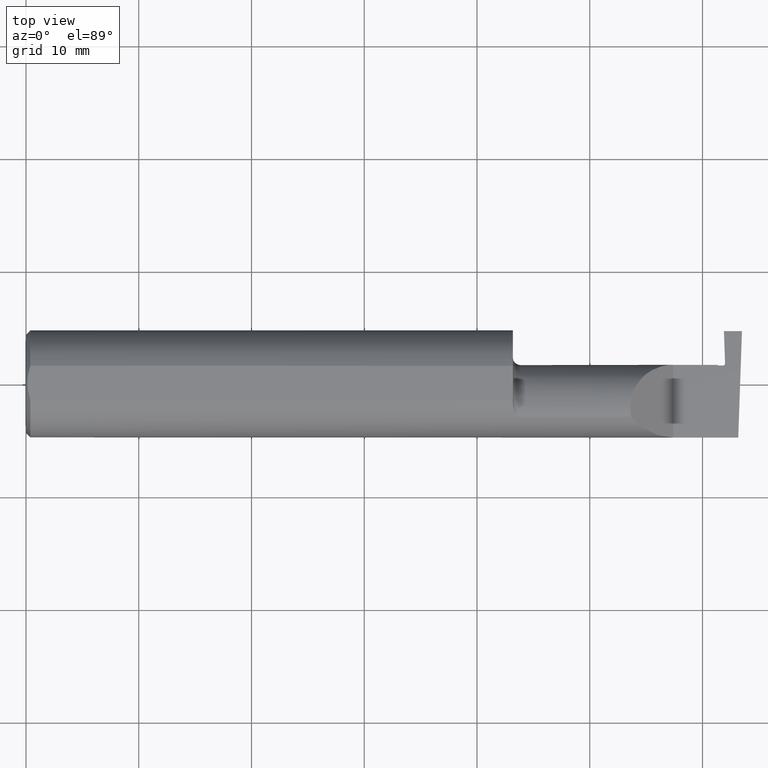
[diagram: clean part render]
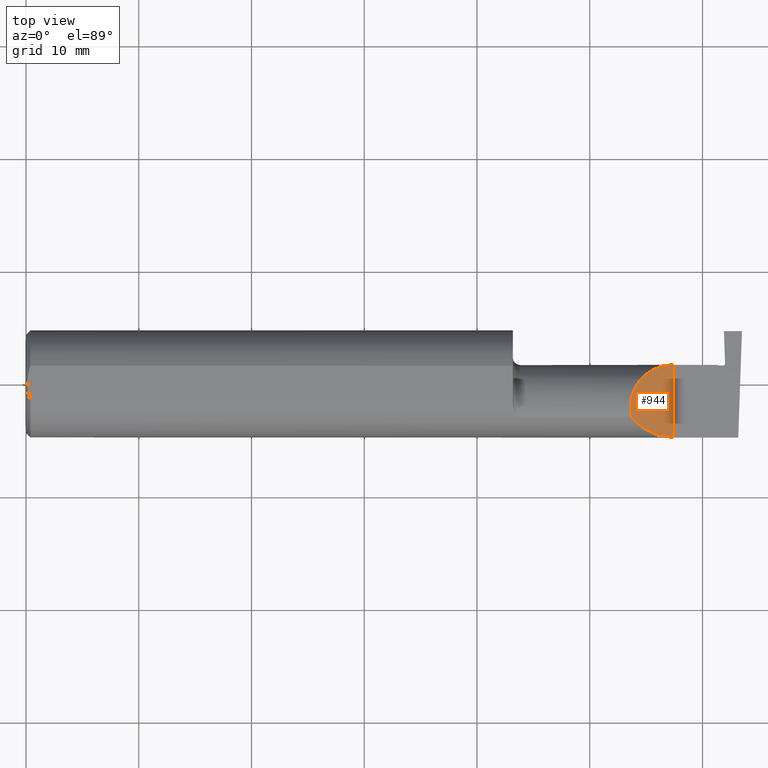
[diagram: same view with one face highlighted and labeled with its STEP entity id]
A machine part, top view. The second image highlights one B-rep face of the part: STEP entity #944.
In plain terms, the highlighted planar face has unit normal (-0.7071, 0, -0.7071).
Its self-contained STEP definition (entity closure, byte-faithful):
#4 = LINE ( 'NONE', #269, #318 ) ;
#7 = CARTESIAN_POINT ( 'NONE',  ( 2.113883229301070532, -0.1172600179964009143, 0.1461167706989301707 ) ) ;
#28 = CARTESIAN_POINT ( 'NONE',  ( 2.260000000000000231, 0.06665000000000002867, 2.987958743070287587E-17 ) ) ;
#60 = CARTESIAN_POINT ( 'NONE',  ( 2.260000000000000231, 0.06665000000000002867, 2.987958743070287587E-17 ) ) ;
#83 = EDGE_CURVE ( 'NONE', #161, #197, #729, .T. ) ;
#144 = CARTESIAN_POINT ( 'NONE',  ( 2.260000000000000231, -0.2000000000000000111, 2.987958743070287587E-17 ) ) ;
#161 = VERTEX_POINT ( 'NONE', #7 ) ;
#197 = VERTEX_POINT ( 'NONE', #876 ) ;
#217 = CARTESIAN_POINT ( 'NONE',  ( 2.172132034355964691, 0.06665000000000001479, 0.08786796564403576149 ) ) ;
#218 = ORIENTED_EDGE ( 'NONE', *, *, #550, .F. ) ;
#227 = CARTESIAN_POINT ( 'NONE',  ( 2.113883229301070532, -0.1172600179964009143, 0.1461167706989301707 ) ) ;
#269 = CARTESIAN_POINT ( 'NONE',  ( 2.260000000000000231, -0.2000000000000000111, 2.987958743070287587E-17 ) ) ;
#304 = ORIENTED_EDGE ( 'NONE', *, *, #489, .F. ) ;
#309 = CARTESIAN_POINT ( 'NONE',  ( 2.150065971957467070, -0.1623470442677542591, 0.1099340280425335908 ) ) ;
#318 = VECTOR ( 'NONE', #347, 39.37007874015748143 ) ;
#320 = DIRECTION ( 'NONE',  ( -0.7071067811865496822, 0.000000000000000000, -0.7071067811865454633 ) ) ;
#347 = DIRECTION ( 'NONE',  ( -0.000000000000000000, 1.000000000000000000, -0.000000000000000000 ) ) ;
#366 = CARTESIAN_POINT ( 'NONE',  ( 2.113883229301070532, -0.1172600179964009143, 0.1461167706989301707 ) ) ;
#375 =( BOUNDED_CURVE ( )  B_SPLINE_CURVE ( 3, ( #695, #924, #217, #60 ),
 .UNSPECIFIED., .F., .T. ) 
 B_SPLINE_CURVE_WITH_KNOTS ( ( 4, 4 ),
 ( 0.000000000000000000, 1.570796326794896558 ),
 .UNSPECIFIED. ) 
 CURVE ( )  GEOMETRIC_REPRESENTATION_ITEM ( )  RATIONAL_B_SPLINE_CURVE ( ( 1.000000000000000000, 0.8047378541243649375, 0.8047378541243649375, 1.000000000000000000 ) ) 
 REPRESENTATION_ITEM ( '' )  );
#378 = CARTESIAN_POINT ( 'NONE',  ( 2.260000000000000231, -0.1873499999999999888, 2.987958743070287587E-17 ) ) ;
#382 = VERTEX_POINT ( 'NONE', #930 ) ;
#422 = AXIS2_PLACEMENT_3D ( 'NONE', #144, #320, #623 ) ;
#460 = CARTESIAN_POINT ( 'NONE',  ( 2.110000000000000764, -0.09477667630339427218, 0.1499999999999999944 ) ) ;
#463 = FACE_OUTER_BOUND ( 'NONE', #574, .T. ) ;
#489 = EDGE_CURVE ( 'NONE', #197, #669, #375, .T. ) ;
#550 = EDGE_CURVE ( 'NONE', #382, #161, #948, .T. ) ;
#574 = EDGE_LOOP ( 'NONE', ( #956, #218, #822, #304 ) ) ;
#619 = CARTESIAN_POINT ( 'NONE',  ( 2.110000000000001208, -0.08334999999999996578, 0.1499999999999999944 ) ) ;
#623 = DIRECTION ( 'NONE',  ( -0.7071067811865454633, 0.000000000000000000, 0.7071067811865496822 ) ) ;
#669 = VERTEX_POINT ( 'NONE', #28 ) ;
#695 = CARTESIAN_POINT ( 'NONE',  ( 2.110000000000001208, -0.08334999999999996578, 0.1499999999999999944 ) ) ;
#729 =( BOUNDED_CURVE ( )  B_SPLINE_CURVE ( 3, ( #366, #1019, #460, #619 ),
 .UNSPECIFIED., .F., .T. ) 
 B_SPLINE_CURVE_WITH_KNOTS ( ( 4, 4 ),
 ( 6.055147272130140479, 6.283185307179586232 ),
 .UNSPECIFIED. ) 
 CURVE ( )  GEOMETRIC_REPRESENTATION_ITEM ( )  RATIONAL_B_SPLINE_CURVE ( ( 1.000000000000000000, 0.9956712472009929815, 0.9956712472009929815, 1.000000000000000000 ) ) 
 REPRESENTATION_ITEM ( '' )  );
#795 = CARTESIAN_POINT ( 'NONE',  ( 2.202189699843949189, -0.1873500000000000443, 0.05781030015605096578 ) ) ;
#822 = ORIENTED_EDGE ( 'NONE', *, *, #1004, .T. ) ;
#876 = CARTESIAN_POINT ( 'NONE',  ( 2.110000000000001208, -0.08334999999999996578, 0.1499999999999999944 ) ) ;
#924 = CARTESIAN_POINT ( 'NONE',  ( 2.110000000000001208, 0.004517965644035767080, 0.1500000000000000222 ) ) ;
#930 = CARTESIAN_POINT ( 'NONE',  ( 2.260000000000000231, -0.1873499999999999888, 2.987958743070287587E-17 ) ) ;
#944 = ADVANCED_FACE ( 'NONE', ( #463 ), #963, .F. ) ;
#948 =( BOUNDED_CURVE ( )  B_SPLINE_CURVE ( 3, ( #378, #795, #309, #227 ),
 .UNSPECIFIED., .F., .T. ) 
 B_SPLINE_CURVE_WITH_KNOTS ( ( 4, 4 ),
 ( 4.712388980384688786, 5.606916381293135743 ),
 .UNSPECIFIED. ) 
 CURVE ( )  GEOMETRIC_REPRESENTATION_ITEM ( )  RATIONAL_B_SPLINE_CURVE ( ( 1.000000000000000000, 0.9344226172588803170, 0.9344226172588803170, 1.000000000000000000 ) ) 
 REPRESENTATION_ITEM ( '' )  );
#956 = ORIENTED_EDGE ( 'NONE', *, *, #83, .F. ) ;
#963 = PLANE ( 'NONE',  #422 ) ;
#1004 = EDGE_CURVE ( 'NONE', #382, #669, #4, .T. ) ;
#1019 = CARTESIAN_POINT ( 'NONE',  ( 2.111300037307155986, -0.1061291577212410964, 0.1486999626928445783 ) ) ;